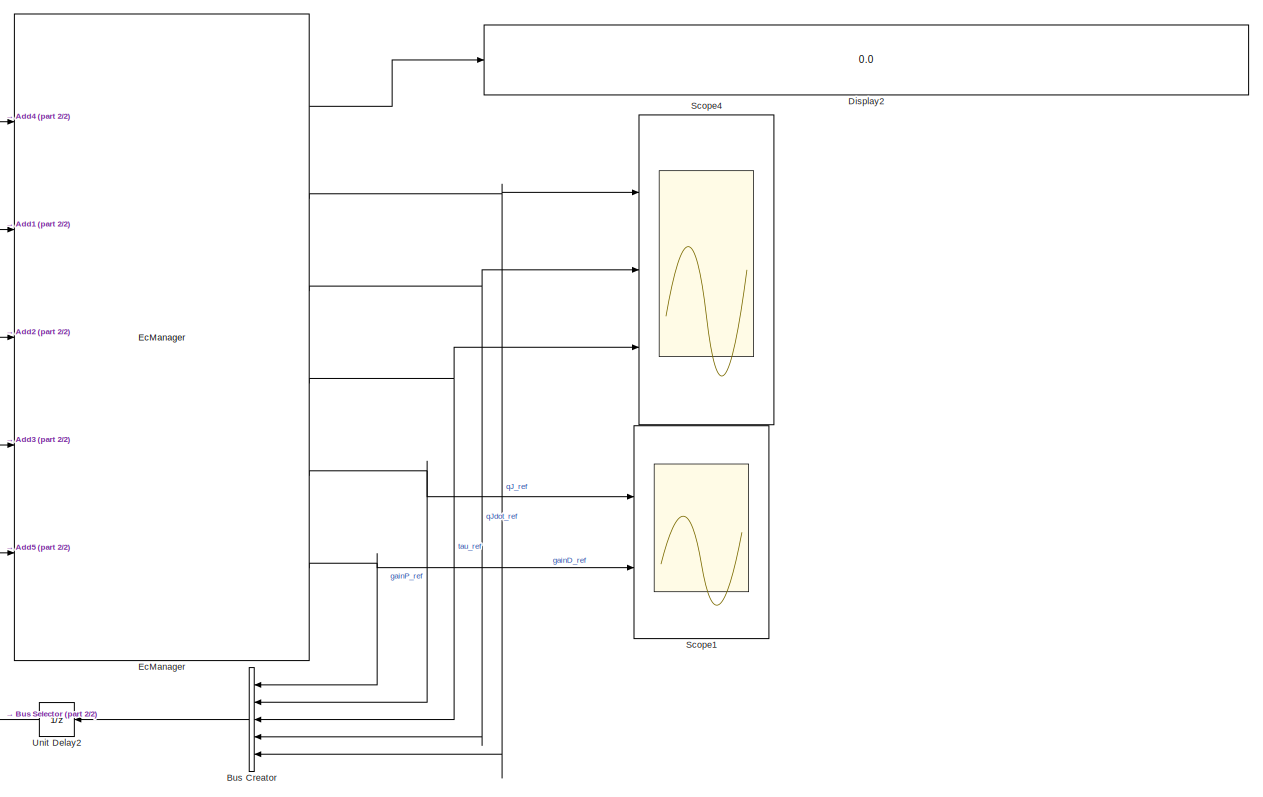
[diagram: root canvas - part 1/2, right side, full height]
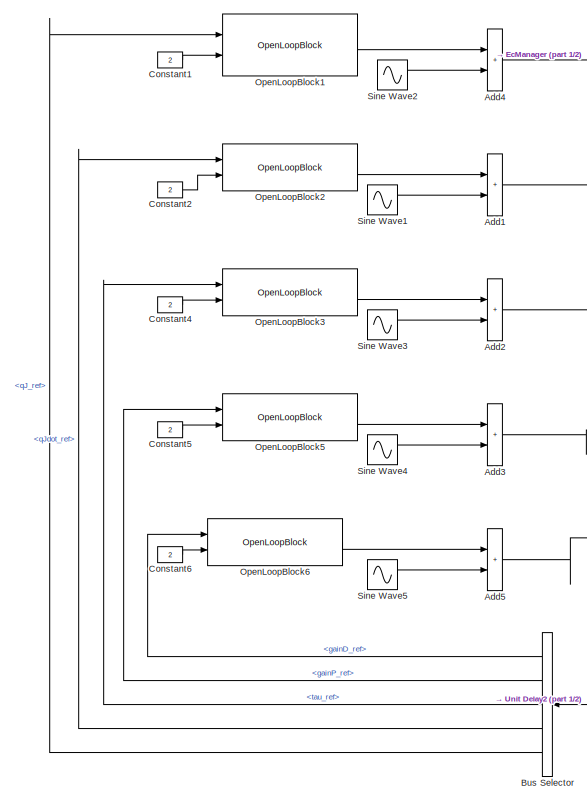
[diagram: root canvas - part 2/2, left side, full height]
MODEL slx_f1d869de64c3
KIND model
CONFIG AbsTol = auto
CONFIG EnableMultiTasking = off
CONFIG FixedStep = 0.05
CONFIG MaxStep = auto
CONFIG MinStep = auto
CONFIG RelTol = 1e-3
CONFIG SampleTimeConstraint = Unconstrained
CONFIG SolverName = ode3
CONFIG StartTime = 0.0
CONFIG StopTime = inf
BLOCK [Sum] Add1
  IconShape = rectangular
  Ports = [2, 1]
BLOCK [Sum] Add2
  IconShape = rectangular
  Ports = [2, 1]
BLOCK [Sum] Add3
  IconShape = rectangular
  Ports = [2, 1]
BLOCK [Sum] Add4
  IconShape = rectangular
  Ports = [2, 1]
BLOCK [Sum] Add5
  IconShape = rectangular
  Ports = [2, 1]
BLOCK [BusCreator] Bus Creator
  DisplayOption = bar
  InheritFromInputs = on
  Inputs = 5
  NameLocation = top
  Ports = [5, 1]
BLOCK [BusSelector] Bus Selector
  NameLocation = top
  OutputSignals = gainD_ref,gainP_ref,tau_ref,qJdot_ref,qJ_ref
  Ports = [1, 5]
BLOCK [Constant] Constant1
  Value = 2
BLOCK [Constant] Constant2
  Value = 2
BLOCK [Constant] Constant4
  Value = 2
BLOCK [Constant] Constant5
  Value = 2
BLOCK [Constant] Constant6
  Value = 2
BLOCK [Display] Display2
  Decimation = 1
  Ports = [1]
BLOCK [Reference] EcManager  REF=EcBlockToolbox/EcManager
  Ports = [5, 6]
  SourceBlock = EcBlockToolbox/EcManager
  SourceProductName = EcBlock Toolbox
BLOCK [Reference] OpenLoopBlock1  REF=Utilities/OpenLoopBlock
  Ports = [2, 1]
  SourceBlock = Utilities/OpenLoopBlock
  SourceProductName = XBotBlock Toolbox
  SourceType = SubSystem
BLOCK [Reference] OpenLoopBlock2  REF=Utilities/OpenLoopBlock
  Ports = [2, 1]
  SourceBlock = Utilities/OpenLoopBlock
  SourceProductName = XBotBlock Toolbox
  SourceType = SubSystem
BLOCK [Reference] OpenLoopBlock3  REF=Utilities/OpenLoopBlock
  Ports = [2, 1]
  SourceBlock = Utilities/OpenLoopBlock
  SourceProductName = XBotBlock Toolbox
  SourceType = SubSystem
BLOCK [Reference] OpenLoopBlock5  REF=Utilities/OpenLoopBlock
  Ports = [2, 1]
  SourceBlock = Utilities/OpenLoopBlock
  SourceProductName = XBotBlock Toolbox
  SourceType = SubSystem
BLOCK [Reference] OpenLoopBlock6  REF=Utilities/OpenLoopBlock
  Ports = [2, 1]
  SourceBlock = Utilities/OpenLoopBlock
  SourceProductName = XBotBlock Toolbox
  SourceType = SubSystem
BLOCK [Scope] Scope1
  Floating = off
  NumInputPorts = 2
  Ports = [2]
  ScopeSpecificationString = Simulink.scopes.TimeScopeBlockCfg('CurrentConfiguration', extmgr.ConfigurationSet(extmgr.Configuration('Core','General UI',true),extmgr.Configuration('Core','Source UI',true),extmgr.Configuration('Sources','WiredSimulink',true,'DataLoggingVariableName','ScopeData2'),extmgr.Configuration('Visuals','Time Domain',true,'SerializedDisplays',{struct('MinYLimReal','760.89491','MaxYLimReal','1248.74144','...<+2545ch>
BLOCK [Scope] Scope4
  Floating = off
  NumInputPorts = 3
  Ports = [3]
  ScopeSpecificationString = Simulink.scopes.TimeScopeBlockCfg('CurrentConfiguration', extmgr.ConfigurationSet(extmgr.Configuration('Core','General UI',true),extmgr.Configuration('Core','Source UI',true),extmgr.Configuration('Sources','WiredSimulink',true),extmgr.Configuration('Visuals','Time Domain',true,'SerializedDisplays',{struct('MinYLimReal','-1.00000','MaxYLimReal','1.00000','YLabelReal','','MinYLimMag','0.00000','MaxY...<+3560ch>
BLOCK [Sin] Sine Wave1
  Amplitude = 10
  Ports = [0, 1]
  SampleTime = 0
BLOCK [Sin] Sine Wave2
  Amplitude = 5
  Ports = [0, 1]
  SampleTime = 0
BLOCK [Sin] Sine Wave3
  Amplitude = 300
  Ports = [0, 1]
  SampleTime = 0
BLOCK [Sin] Sine Wave4
  Amplitude = 200
  Ports = [0, 1]
  SampleTime = 0
BLOCK [Sin] Sine Wave5
  Amplitude = 10
  Ports = [0, 1]
  SampleTime = 0
BLOCK [UnitDelay] Unit Delay2
  HasFrameUpgradeWarning = on
  NameLocation = top
  SampleTime = -1
LINE Add1:1 -> EcManager:2
LINE Add2:1 -> EcManager:3
LINE Add3:1 -> EcManager:4
LINE Add4:1 -> EcManager:1
LINE Add5:1 -> EcManager:5
LINE Bus Creator:1 -> Unit Delay2:1
LINE Bus Selector:1 -> OpenLoopBlock6:1
LINE Bus Selector:2 -> OpenLoopBlock5:1
LINE Bus Selector:3 -> OpenLoopBlock3:1
LINE Bus Selector:4 -> OpenLoopBlock2:1
LINE Bus Selector:5 -> OpenLoopBlock1:1
LINE Constant1:1 -> OpenLoopBlock1:2
LINE Constant2:1 -> OpenLoopBlock2:2
LINE Constant4:1 -> OpenLoopBlock3:2
LINE Constant5:1 -> OpenLoopBlock5:2
LINE Constant6:1 -> OpenLoopBlock6:2
LINE EcManager:1 -> Display2:1
NET EcManager:2 -> Bus Creator:5, Scope4:1
NET EcManager:3 -> Bus Creator:4, Scope4:2
NET EcManager:4 -> Bus Creator:3, Scope4:3
NET EcManager:5 -> Bus Creator:2, Scope1:1
NET EcManager:6 -> Bus Creator:1, Scope1:2
LINE OpenLoopBlock1:1 -> Add4:1
LINE OpenLoopBlock2:1 -> Add1:1
LINE OpenLoopBlock3:1 -> Add2:1
LINE OpenLoopBlock5:1 -> Add3:1
LINE OpenLoopBlock6:1 -> Add5:1
LINE Sine Wave1:1 -> Add1:2
LINE Sine Wave2:1 -> Add4:2
LINE Sine Wave3:1 -> Add2:2
LINE Sine Wave4:1 -> Add3:2
LINE Sine Wave5:1 -> Add5:2
LINE Unit Delay2:1 -> Bus Selector:1
note: NET lines group one-source signal fan-out (src -> all destinations, sorted); 1:1 wires keep LINE
